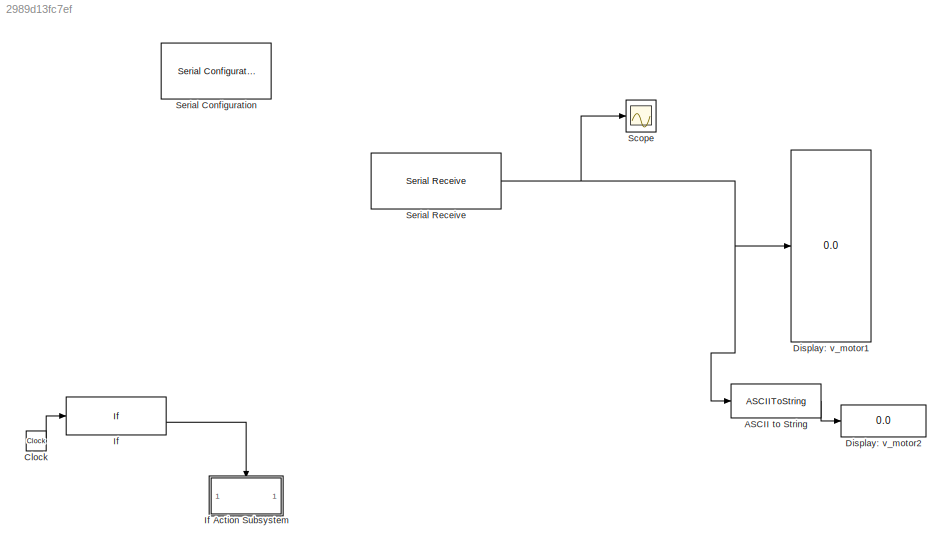
MODEL slx_2989d13fc7ef
KIND model
CONFIG AbsTol = auto
CONFIG EnableMultiTasking = off
CONFIG FixedStep = 0.01
CONFIG MaxStep = auto
CONFIG MinStep = auto
CONFIG RelTol = 1e-3
CONFIG SampleTimeConstraint = Unconstrained
CONFIG SolverName = FixedStepAuto
CONFIG StartTime = 0.0
CONFIG StopTime = inf
BLOCK [ASCIIToString] ASCII to String
BLOCK [Clock] Clock
BLOCK [Display] Display: v_motor1
  Decimation = 50
BLOCK [Display] Display: v_motor2
  Decimation = 50
BLOCK [If] If
  IfExpression = u1 < 1
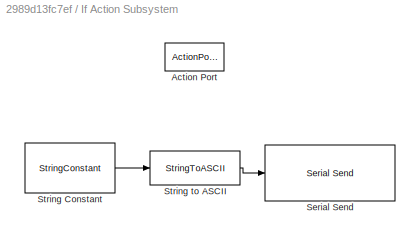
BLOCK [SubSystem] If Action Subsystem
  TreatAsAtomicUnit = on
BLOCK [ActionPort] If Action Subsystem/Action Port
  ActionPortLabel = else
BLOCK [Reference] If Action Subsystem/Serial Send  REF=instrumentseriallib/Serial Send
  Priority = 1
  SourceBlock = instrumentseriallib/Serial Send
  SourceType = system.SerialSend
BLOCK [StringConstant] If Action Subsystem/String Constant
  String = "1111,5556"
BLOCK [StringToASCII] If Action Subsystem/String to ASCII
BLOCK [Scope] Scope
  ActiveDisplayYMaximum = 58.375
  ActiveDisplayYMinimum = 4.625
  Floating = off
  GraphicalSettings = {"GraphicalSettings":{"LegacySettings":true,"Style":{"AxesScalingProperties":{"AlignXAxis":"Center","AlignYAxis":"Center","AutoScaleXAxisLimits":true,"AxesScaling":"Manual","AxesScalingNumUpdates":10,"ScaleAxesLimitsAtStop":true,"XAxisDataRange":100,"YAxisDataRange":80},"Style":{"AxesColor":"[0 0 0]","ChannelNames":[""],"ColorOrder":"[1 0.909803921568627 0.392156862745098;0.149019607843137 0.54901...<+675ch>
  LayoutDimensionsString = [1 1]
  MultipleDisplayCache = [{"MaxYLimMag":58.375,"MaxYLimReal":58.375,"MinYLimMag":4.625,"MinYLimReal":4.625,"PlotAsMagnitudePhase":false,"ShowGrid":true,"ShowLegend":false,"Title":"%<SignalLabel>","YLabel":""}]
  NumInputPorts = 1
  WasSavedAsWebScope = on
BLOCK [Reference] Serial Configuration  REF=instrumentseriallib/Serial Configuration
  LibrarySourceBlock = embeddedtargetslib/Host Communication/Serial Configuration
  Priority = -200000
  SourceBlock = instrumentseriallib/Serial Configuration
  SourceType = system.SerialConfiguration
BLOCK [Reference] Serial Receive  REF=instrumentseriallib/Serial Receive
  Priority = 1
  SourceBlock = instrumentseriallib/Serial Receive
  SourceType = system.SerialReceive
LINE ASCII to String:1 -> Display: v_motor2:1
LINE Clock:1 -> If:1
LINE If Action Subsystem/String Constant:1 -> If Action Subsystem/String to ASCII:1
LINE If Action Subsystem/String to ASCII:1 -> If Action Subsystem/Serial Send:1
LINE If:2 -> If Action Subsystem:ifaction
NET Serial Receive:1 -> ASCII to String:1, Display: v_motor1:1, Scope:1
note: NET lines group one-source signal fan-out (src -> all destinations, sorted); 1:1 wires keep LINE
